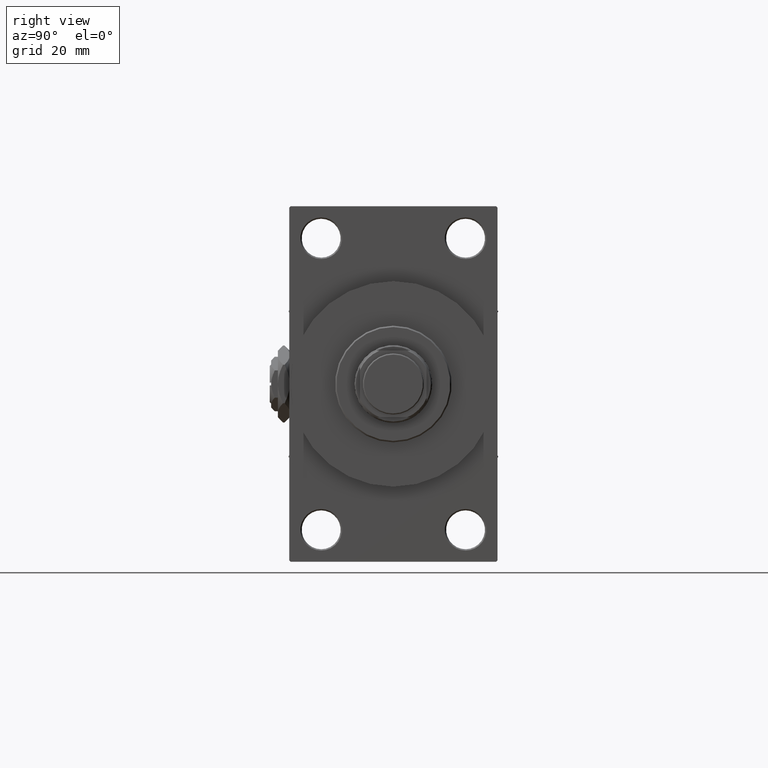
[diagram: clean part render]
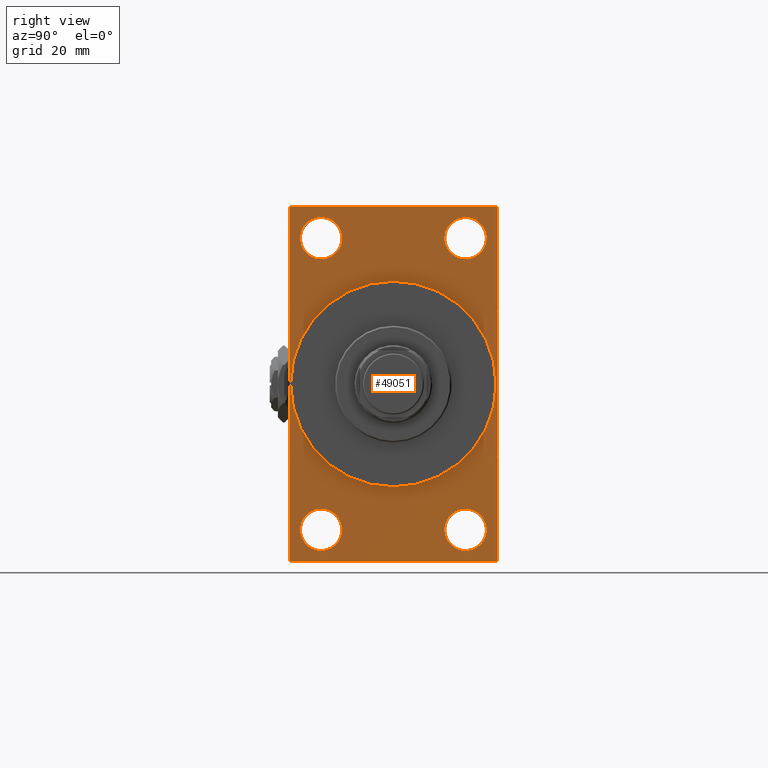
[diagram: same view with one face highlighted and labeled with its STEP entity id]
A machine part, right view. The second image highlights one B-rep face of the part: STEP entity #49051.
In plain terms, the highlighted planar face has unit normal (-1, 0, 0).
Its self-contained STEP definition (entity closure, byte-faithful):
#205 = CARTESIAN_POINT ( 'NONE',  ( 138.0000000000000000, 0.000000000000000000, 0.000000000000000000 ) ) ;
#443 = CARTESIAN_POINT ( 'NONE',  ( 138.0000000000000000, -36.99999999999993605, -64.00000000000001421 ) ) ;
#650 = ORIENTED_EDGE ( 'NONE', *, *, #8133, .T. ) ;
#832 = CARTESIAN_POINT ( 'NONE',  ( 138.0000000000000000, -25.99999999999999645, 52.50000000000000000 ) ) ;
#938 = VECTOR ( 'NONE', #9504, 1000.000000000000000 ) ;
#1284 = DIRECTION ( 'NONE',  ( 1.000000000000000000, 0.000000000000000000, 0.000000000000000000 ) ) ;
#2167 = CARTESIAN_POINT ( 'NONE',  ( 138.0000000000000000, -25.99999999999999645, -44.99999999999998579 ) ) ;
#2245 = ORIENTED_EDGE ( 'NONE', *, *, #21900, .T. ) ;
#2428 = DIRECTION ( 'NONE',  ( -1.000000000000000000, 0.000000000000000000, -0.000000000000000000 ) ) ;
#2687 = ORIENTED_EDGE ( 'NONE', *, *, #46254, .T. ) ;
#3075 = ORIENTED_EDGE ( 'NONE', *, *, #46363, .T. ) ;
#3807 = CARTESIAN_POINT ( 'NONE',  ( 138.0000000000000000, 36.99999999999999289, -64.00000000000000000 ) ) ;
#3916 = DIRECTION ( 'NONE',  ( 0.000000000000000000, 0.000000000000000000, 1.000000000000000000 ) ) ;
#4159 = DIRECTION ( 'NONE',  ( -1.000000000000000000, 0.000000000000000000, -0.000000000000000000 ) ) ;
#4332 = CIRCLE ( 'NONE', #49328, 37.00000000000000000 ) ;
#4579 = VERTEX_POINT ( 'NONE', #43892 ) ;
#5048 = DIRECTION ( 'NONE',  ( 0.000000000000000000, 0.000000000000000000, -1.000000000000000000 ) ) ;
#5234 = LINE ( 'NONE', #36398, #24220 ) ;
#5962 = VERTEX_POINT ( 'NONE', #18169 ) ;
#6015 = CARTESIAN_POINT ( 'NONE',  ( 138.0000000000000000, 26.00000000000000000, 60.00000000000000000 ) ) ;
#6455 = CARTESIAN_POINT ( 'NONE',  ( 138.0000000000000000, -25.99999999999999645, 44.99999999999999289 ) ) ;
#7474 = VECTOR ( 'NONE', #31362, 1000.000000000000000 ) ;
#8068 = EDGE_CURVE ( 'NONE', #22147, #25931, #34825, .T. ) ;
#8133 = EDGE_CURVE ( 'NONE', #38484, #17690, #14045, .T. ) ;
#8330 = AXIS2_PLACEMENT_3D ( 'NONE', #16579, #43735, #16827 ) ;
#8559 = CARTESIAN_POINT ( 'NONE',  ( 138.0000000000000000, 0.000000000000000000, 0.000000000000000000 ) ) ;
#8592 = CIRCLE ( 'NONE', #12616, 7.500000000000007105 ) ;
#8991 = ORIENTED_EDGE ( 'NONE', *, *, #38248, .F. ) ;
#9260 = LINE ( 'NONE', #43964, #938 ) ;
#9286 = AXIS2_PLACEMENT_3D ( 'NONE', #832, #35778, #27997 ) ;
#9504 = DIRECTION ( 'NONE',  ( -0.000000000000000000, 0.7071067811865573427, 0.7071067811865378028 ) ) ;
#9766 = DIRECTION ( 'NONE',  ( -0.000000000000000000, -0.7071067811865524577, -0.7071067811865426878 ) ) ;
#9772 = EDGE_LOOP ( 'NONE', ( #8991, #32931 ) ) ;
#9955 = ORIENTED_EDGE ( 'NONE', *, *, #8068, .T. ) ;
#11160 = CARTESIAN_POINT ( 'NONE',  ( 138.0000000000000000, 37.50000000000000000, 63.99999999999998579 ) ) ;
#11329 = CARTESIAN_POINT ( 'NONE',  ( 138.0000000000000000, 26.00000000000000000, 52.49999999999999289 ) ) ;
#12097 = VECTOR ( 'NONE', #45724, 999.9999999999998863 ) ;
#12580 = DIRECTION ( 'NONE',  ( 0.000000000000000000, 0.000000000000000000, 1.000000000000000000 ) ) ;
#12616 = AXIS2_PLACEMENT_3D ( 'NONE', #30696, #42516, #12580 ) ;
#13147 = FACE_BOUND ( 'NONE', #24780, .T. ) ;
#14008 = CARTESIAN_POINT ( 'NONE',  ( 138.0000000000000000, -25.99999999999999645, -60.00000000000000000 ) ) ;
#14045 = LINE ( 'NONE', #29142, #41283 ) ;
#14207 = AXIS2_PLACEMENT_3D ( 'NONE', #32258, #28506, #43841 ) ;
#14569 = CARTESIAN_POINT ( 'NONE',  ( 138.0000000000000000, -36.99999999999995737, 63.99999999999997158 ) ) ;
#15050 = LINE ( 'NONE', #15290, #7474 ) ;
#15070 = CARTESIAN_POINT ( 'NONE',  ( 138.0000000000000000, 26.00000000000000000, 44.99999999999998579 ) ) ;
#15290 = CARTESIAN_POINT ( 'NONE',  ( 138.0000000000000000, 37.49999999999999289, -64.00000000000000000 ) ) ;
#15296 = DIRECTION ( 'NONE',  ( 1.000000000000000000, 0.000000000000000000, 0.000000000000000000 ) ) ;
#15475 = CARTESIAN_POINT ( 'NONE',  ( 138.0000000000000000, 26.00000000000000000, 52.49999999999999289 ) ) ;
#15610 = DIRECTION ( 'NONE',  ( -1.000000000000000000, 0.000000000000000000, -0.000000000000000000 ) ) ;
#15726 = CIRCLE ( 'NONE', #42265, 7.500000000000007105 ) ;
#16076 = ORIENTED_EDGE ( 'NONE', *, *, #16090, .T. ) ;
#16090 = EDGE_CURVE ( 'NONE', #28644, #36104, #33905, .T. ) ;
#16579 = CARTESIAN_POINT ( 'NONE',  ( 138.0000000000000000, -25.99999999999999645, -52.49999999999999289 ) ) ;
#16827 = DIRECTION ( 'NONE',  ( 0.000000000000000000, 0.000000000000000000, 1.000000000000000000 ) ) ;
#16922 = FACE_BOUND ( 'NONE', #20714, .T. ) ;
#17261 = ORIENTED_EDGE ( 'NONE', *, *, #25454, .T. ) ;
#17690 = VERTEX_POINT ( 'NONE', #30235 ) ;
#17759 = DIRECTION ( 'NONE',  ( 0.000000000000000000, 0.000000000000000000, 1.000000000000000000 ) ) ;
#17903 = CARTESIAN_POINT ( 'NONE',  ( 138.0000000000000000, -37.49999999999999289, -63.49999999999997158 ) ) ;
#18169 = CARTESIAN_POINT ( 'NONE',  ( 138.0000000000000000, 26.00000000000000000, -60.00000000000000000 ) ) ;
#18414 = DIRECTION ( 'NONE',  ( 0.000000000000000000, 0.000000000000000000, 1.000000000000000000 ) ) ;
#18969 = DIRECTION ( 'NONE',  ( 0.000000000000000000, -1.000000000000000000, -1.850371707708594563E-16 ) ) ;
#19048 = AXIS2_PLACEMENT_3D ( 'NONE', #33066, #44632, #30044 ) ;
#19432 = ORIENTED_EDGE ( 'NONE', *, *, #48435, .T. ) ;
#19506 = AXIS2_PLACEMENT_3D ( 'NONE', #205, #15296, #35394 ) ;
#19861 = DIRECTION ( 'NONE',  ( 0.000000000000000000, 0.000000000000000000, -1.000000000000000000 ) ) ;
#20334 = CIRCLE ( 'NONE', #49278, 7.500000000000007105 ) ;
#20710 = FACE_BOUND ( 'NONE', #35304, .T. ) ;
#20714 = EDGE_LOOP ( 'NONE', ( #38997, #44279 ) ) ;
#20901 = EDGE_CURVE ( 'NONE', #40847, #49085, #29847, .T. ) ;
#21051 = EDGE_CURVE ( 'NONE', #26906, #40181, #5234, .T. ) ;
#21900 = EDGE_CURVE ( 'NONE', #29459, #40181, #9260, .T. ) ;
#22147 = VERTEX_POINT ( 'NONE', #2167 ) ;
#22650 = LINE ( 'NONE', #45771, #43125 ) ;
#23071 = AXIS2_PLACEMENT_3D ( 'NONE', #41558, #45318, #18414 ) ;
#23867 = CIRCLE ( 'NONE', #19048, 7.500000000000007105 ) ;
#24220 = VECTOR ( 'NONE', #39935, 1000.000000000000000 ) ;
#24780 = EDGE_LOOP ( 'NONE', ( #29463, #9955 ) ) ;
#24799 = EDGE_CURVE ( 'NONE', #29459, #36104, #15050, .T. ) ;
#24999 = EDGE_CURVE ( 'NONE', #39167, #40828, #20334, .T. ) ;
#25017 = CARTESIAN_POINT ( 'NONE',  ( 138.0000000000000000, 26.00000000000000000, -44.99999999999998579 ) ) ;
#25454 = EDGE_CURVE ( 'NONE', #40828, #39167, #31586, .T. ) ;
#25931 = VERTEX_POINT ( 'NONE', #14008 ) ;
#26906 = VERTEX_POINT ( 'NONE', #32320 ) ;
#27997 = DIRECTION ( 'NONE',  ( 0.000000000000000000, 0.000000000000000000, 1.000000000000000000 ) ) ;
#28506 = DIRECTION ( 'NONE',  ( -1.000000000000000000, 0.000000000000000000, -0.000000000000000000 ) ) ;
#28600 = CARTESIAN_POINT ( 'NONE',  ( 138.0000000000000000, 26.00000000000000000, -52.49999999999999289 ) ) ;
#28644 = VERTEX_POINT ( 'NONE', #17903 ) ;
#28760 = CARTESIAN_POINT ( 'NONE',  ( 138.0000000000000000, 0.000000000000000000, 37.00000000000000000 ) ) ;
#29139 = VERTEX_POINT ( 'NONE', #33376 ) ;
#29142 = CARTESIAN_POINT ( 'NONE',  ( 138.0000000000000000, -37.49999999999999289, 63.49999999999994316 ) ) ;
#29250 = FACE_BOUND ( 'NONE', #9772, .T. ) ;
#29459 = VERTEX_POINT ( 'NONE', #3807 ) ;
#29463 = ORIENTED_EDGE ( 'NONE', *, *, #48884, .T. ) ;
#29847 = CIRCLE ( 'NONE', #19506, 37.00000000000000000 ) ;
#30044 = DIRECTION ( 'NONE',  ( 0.000000000000000000, 0.000000000000000000, 1.000000000000000000 ) ) ;
#30235 = CARTESIAN_POINT ( 'NONE',  ( 138.0000000000000000, -37.49999999999999289, 63.49999999999994316 ) ) ;
#30696 = CARTESIAN_POINT ( 'NONE',  ( 138.0000000000000000, -25.99999999999999645, 52.50000000000000000 ) ) ;
#30760 = LINE ( 'NONE', #11160, #45431 ) ;
#30957 = CIRCLE ( 'NONE', #9286, 7.500000000000007105 ) ;
#31055 = EDGE_LOOP ( 'NONE', ( #33466, #17261 ) ) ;
#31362 = DIRECTION ( 'NONE',  ( 0.000000000000000000, -1.000000000000000000, -1.850371707708594563E-16 ) ) ;
#31586 = CIRCLE ( 'NONE', #38034, 7.500000000000007105 ) ;
#32054 = EDGE_CURVE ( 'NONE', #5962, #35542, #15726, .T. ) ;
#32063 = ORIENTED_EDGE ( 'NONE', *, *, #33771, .T. ) ;
#32258 = CARTESIAN_POINT ( 'NONE',  ( 138.0000000000000000, 0.000000000000000000, 0.000000000000000000 ) ) ;
#32320 = CARTESIAN_POINT ( 'NONE',  ( 138.0000000000000000, 37.50000000000000000, 63.49999999999998579 ) ) ;
#32931 = ORIENTED_EDGE ( 'NONE', *, *, #20901, .F. ) ;
#33066 = CARTESIAN_POINT ( 'NONE',  ( 138.0000000000000000, -25.99999999999999645, -52.49999999999999289 ) ) ;
#33376 = CARTESIAN_POINT ( 'NONE',  ( 138.0000000000000000, 36.99999999999997158, 63.99999999999998579 ) ) ;
#33466 = ORIENTED_EDGE ( 'NONE', *, *, #24999, .T. ) ;
#33761 = EDGE_LOOP ( 'NONE', ( #32063, #16076, #36302, #2245, #41975, #38639, #2687, #650 ) ) ;
#33771 = EDGE_CURVE ( 'NONE', #17690, #28644, #22650, .T. ) ;
#33807 = EDGE_CURVE ( 'NONE', #26906, #29139, #46016, .T. ) ;
#33905 = LINE ( 'NONE', #443, #12097 ) ;
#34691 = DIRECTION ( 'NONE',  ( 0.000000000000000000, -0.7071067811865672237, 0.7071067811865279218 ) ) ;
#34825 = CIRCLE ( 'NONE', #8330, 7.500000000000007105 ) ;
#35304 = EDGE_LOOP ( 'NONE', ( #3075, #19432 ) ) ;
#35394 = DIRECTION ( 'NONE',  ( 0.000000000000000000, 0.000000000000000000, -1.000000000000000000 ) ) ;
#35542 = VERTEX_POINT ( 'NONE', #25017 ) ;
#35778 = DIRECTION ( 'NONE',  ( -1.000000000000000000, 0.000000000000000000, -0.000000000000000000 ) ) ;
#36104 = VERTEX_POINT ( 'NONE', #46961 ) ;
#36302 = ORIENTED_EDGE ( 'NONE', *, *, #24799, .F. ) ;
#36398 = CARTESIAN_POINT ( 'NONE',  ( 138.0000000000000000, 37.50000000000000000, 63.99999999999998579 ) ) ;
#38034 = AXIS2_PLACEMENT_3D ( 'NONE', #11329, #15610, #42512 ) ;
#38248 = EDGE_CURVE ( 'NONE', #49085, #40847, #4332, .T. ) ;
#38484 = VERTEX_POINT ( 'NONE', #14569 ) ;
#38639 = ORIENTED_EDGE ( 'NONE', *, *, #33807, .T. ) ;
#38997 = ORIENTED_EDGE ( 'NONE', *, *, #32054, .T. ) ;
#39136 = CARTESIAN_POINT ( 'NONE',  ( 138.0000000000000000, 37.49999999999999289, -63.50000000000001421 ) ) ;
#39167 = VERTEX_POINT ( 'NONE', #15070 ) ;
#39935 = DIRECTION ( 'NONE',  ( 0.000000000000000000, -5.421010862427522170E-17, -1.000000000000000000 ) ) ;
#40060 = FACE_OUTER_BOUND ( 'NONE', #33761, .T. ) ;
#40181 = VERTEX_POINT ( 'NONE', #39136 ) ;
#40308 = PLANE ( 'NONE',  #14207 ) ;
#40828 = VERTEX_POINT ( 'NONE', #6015 ) ;
#40847 = VERTEX_POINT ( 'NONE', #48506 ) ;
#41283 = VECTOR ( 'NONE', #9766, 1000.000000000000000 ) ;
#41558 = CARTESIAN_POINT ( 'NONE',  ( 138.0000000000000000, 26.00000000000000000, -52.49999999999999289 ) ) ;
#41975 = ORIENTED_EDGE ( 'NONE', *, *, #21051, .F. ) ;
#42004 = CARTESIAN_POINT ( 'NONE',  ( 138.0000000000000000, 36.99999999999997158, 63.99999999999998579 ) ) ;
#42265 = AXIS2_PLACEMENT_3D ( 'NONE', #28600, #2428, #17759 ) ;
#42315 = CIRCLE ( 'NONE', #23071, 7.500000000000007105 ) ;
#42512 = DIRECTION ( 'NONE',  ( 0.000000000000000000, 0.000000000000000000, 1.000000000000000000 ) ) ;
#42516 = DIRECTION ( 'NONE',  ( -1.000000000000000000, 0.000000000000000000, -0.000000000000000000 ) ) ;
#43125 = VECTOR ( 'NONE', #19861, 1000.000000000000000 ) ;
#43735 = DIRECTION ( 'NONE',  ( -1.000000000000000000, 0.000000000000000000, -0.000000000000000000 ) ) ;
#43841 = DIRECTION ( 'NONE',  ( -0.000000000000000000, 0.000000000000000000, 1.000000000000000000 ) ) ;
#43892 = CARTESIAN_POINT ( 'NONE',  ( 138.0000000000000000, -25.99999999999999645, 60.00000000000000711 ) ) ;
#43964 = CARTESIAN_POINT ( 'NONE',  ( 138.0000000000000000, 37.49999999999999289, -63.50000000000001421 ) ) ;
#44279 = ORIENTED_EDGE ( 'NONE', *, *, #49159, .T. ) ;
#44632 = DIRECTION ( 'NONE',  ( -1.000000000000000000, 0.000000000000000000, -0.000000000000000000 ) ) ;
#45318 = DIRECTION ( 'NONE',  ( -1.000000000000000000, 0.000000000000000000, -0.000000000000000000 ) ) ;
#45431 = VECTOR ( 'NONE', #18969, 1000.000000000000000 ) ;
#45724 = DIRECTION ( 'NONE',  ( 0.000000000000000000, 0.7071067811865574537, -0.7071067811865376918 ) ) ;
#45771 = CARTESIAN_POINT ( 'NONE',  ( 138.0000000000000000, -37.49999999999999289, 63.99999999999997158 ) ) ;
#45867 = VERTEX_POINT ( 'NONE', #6455 ) ;
#46016 = LINE ( 'NONE', #42004, #47150 ) ;
#46254 = EDGE_CURVE ( 'NONE', #29139, #38484, #30760, .T. ) ;
#46363 = EDGE_CURVE ( 'NONE', #45867, #4579, #30957, .T. ) ;
#46961 = CARTESIAN_POINT ( 'NONE',  ( 138.0000000000000000, -36.99999999999993605, -64.00000000000001421 ) ) ;
#47150 = VECTOR ( 'NONE', #34691, 1000.000000000000000 ) ;
#48351 = FACE_BOUND ( 'NONE', #31055, .T. ) ;
#48435 = EDGE_CURVE ( 'NONE', #4579, #45867, #8592, .T. ) ;
#48506 = CARTESIAN_POINT ( 'NONE',  ( 138.0000000000000000, 4.531193156845206793E-15, -37.00000000000000000 ) ) ;
#48884 = EDGE_CURVE ( 'NONE', #25931, #22147, #23867, .T. ) ;
#49051 = ADVANCED_FACE ( 'NONE', ( #20710, #13147, #16922, #48351, #29250, #40060 ), #40308, .F. ) ;
#49085 = VERTEX_POINT ( 'NONE', #28760 ) ;
#49159 = EDGE_CURVE ( 'NONE', #35542, #5962, #42315, .T. ) ;
#49278 = AXIS2_PLACEMENT_3D ( 'NONE', #15475, #4159, #3916 ) ;
#49328 = AXIS2_PLACEMENT_3D ( 'NONE', #8559, #1284, #5048 ) ;